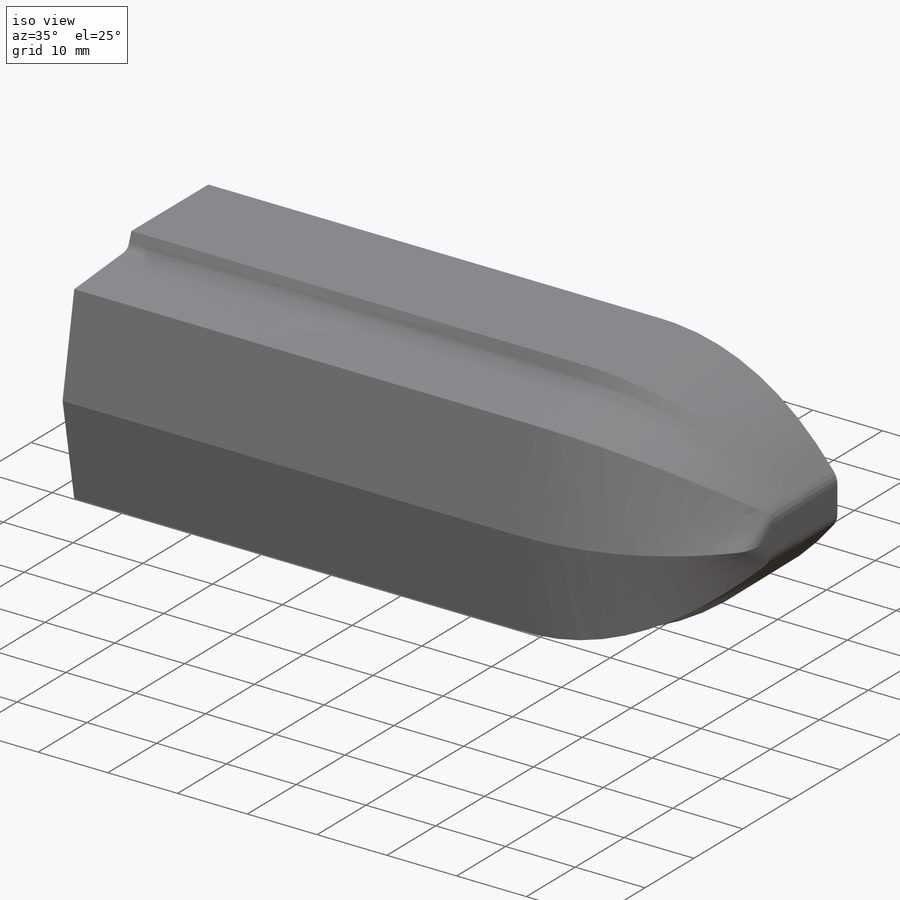
[diagram: iso view]
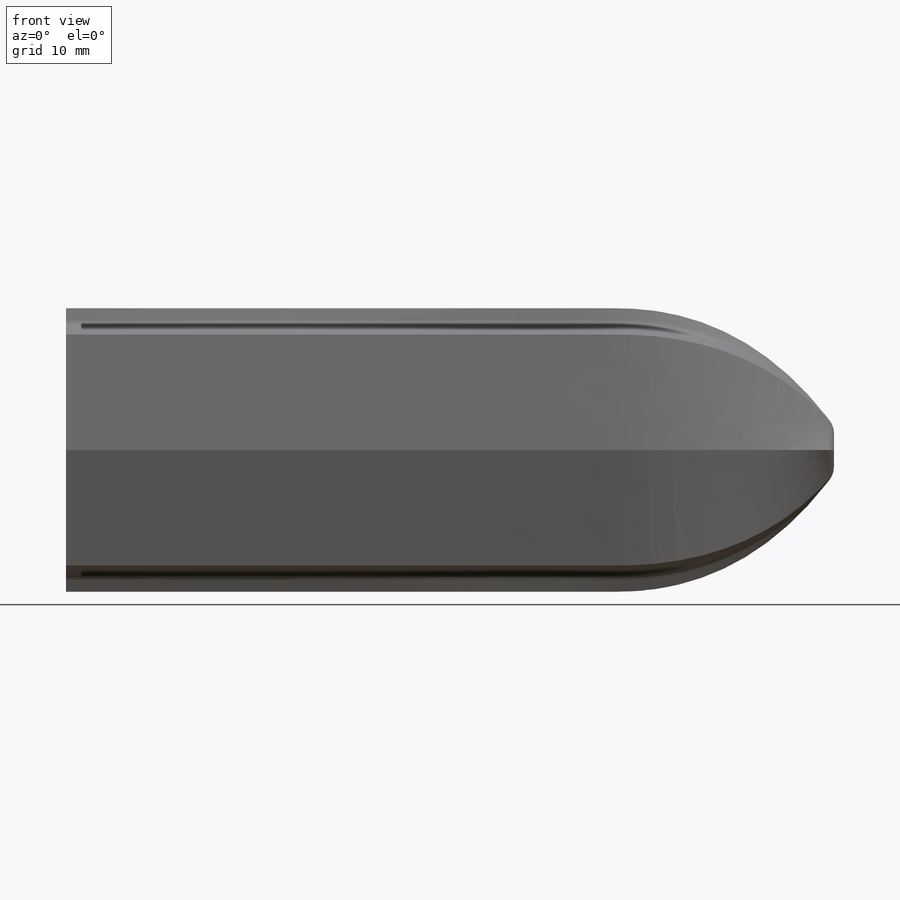
[diagram: front view]
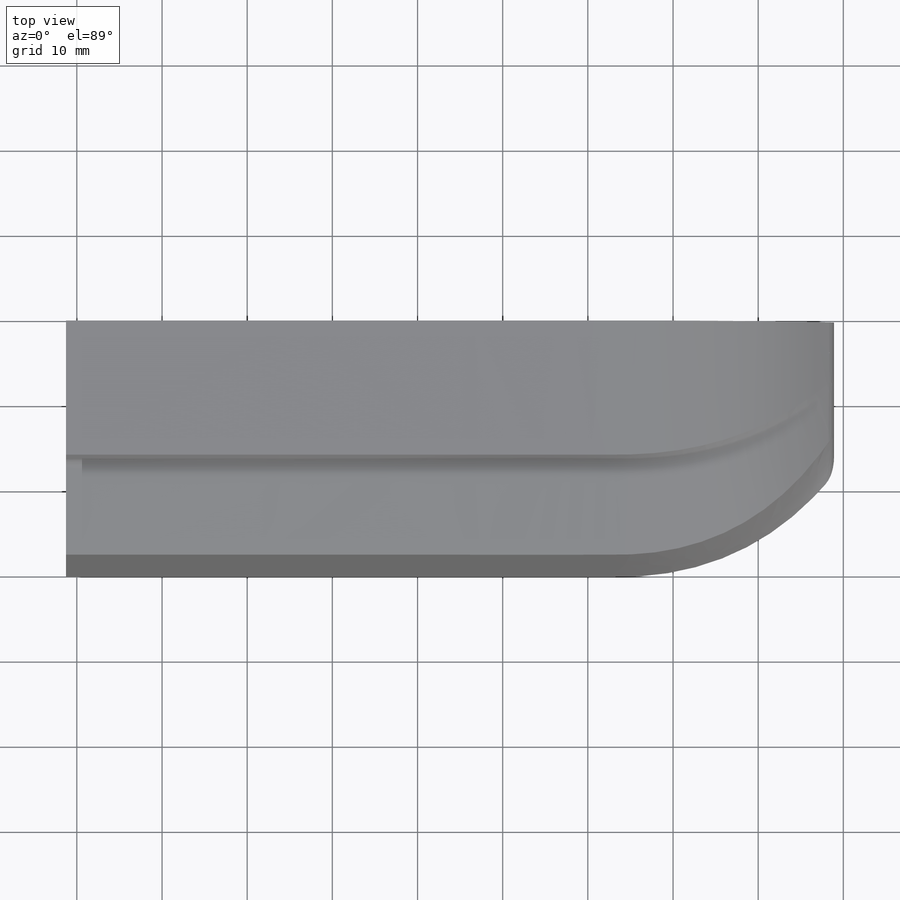
[diagram: top view]
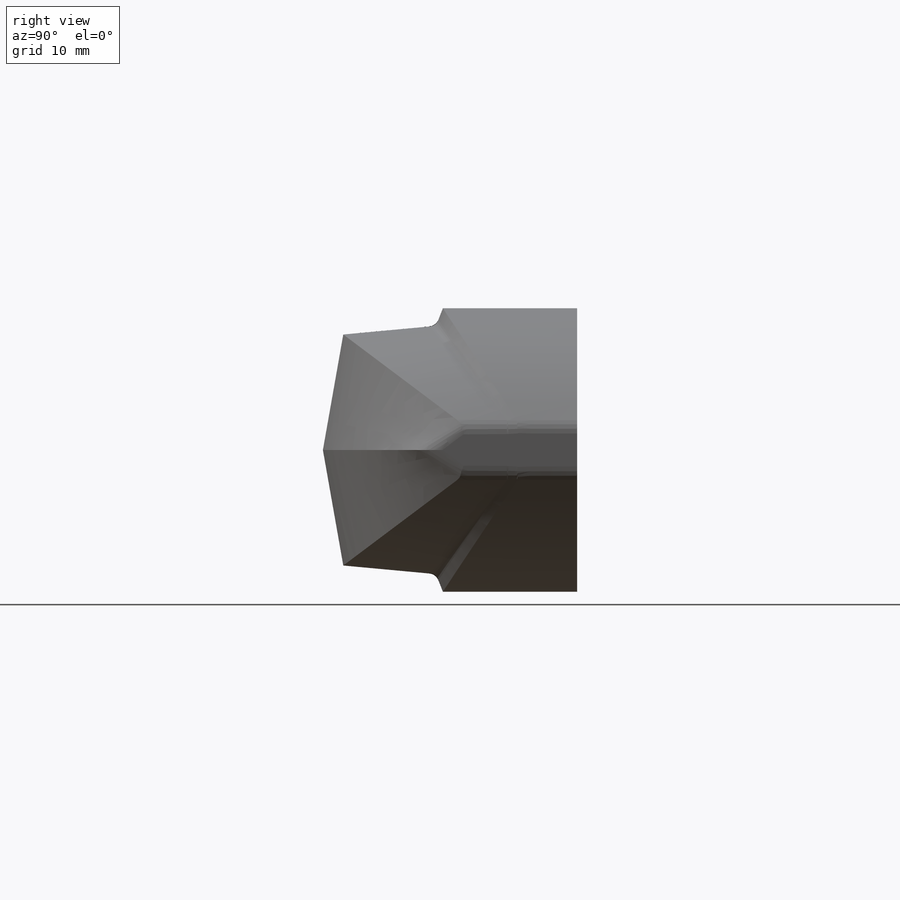
[diagram: right view]
SOLIDWORKS PART (.sldprt)
format: sldprt  version: not decoded by parser v0  size: 1,503,744 bytes
history: native  units: mm
features: sketch x29, fillet x10, extrude x8, plane x5, cut_extrude x3, mirror x3, chamfer x3, material x1 (+11 scaffold rows collapsed)
feature tree (73):
  scaffold x11  (default folders/planes/origin — collapsed)
  material  "boat_hull_SLS"
  plane  "Plane2"  Offset=63.5mm
  plane  "Plane1"  Offset=38.1mm
  plane  "Plane3"  Offset=88.9mm
  sketch  "Sketch1"  dims[c1.D4=4.445mm c1.D1=~35.069646mm c2.D1=10.0deg c2.D2=~2.813038mm c3.D2=115.0deg c3.D3=31.75mm c3.D4=~141.982194mm c3.D5=25.4mm c4.D2=25.4mm c4.D3=~14.313501mm c5.D3=110.0deg c5.D1=~25.166254mm c6.D1=80.0deg c6.D2=1.27mm c6.D3=1.27mm c6.D4=1.27mm c6.D5=1.27mm c6.D6=13.97mm c6.D7=20.32mm c6.D8=~6.552874mm c7.D8=100.0deg c7.D9=17.78mm c7.D10=7.62mm c7.D11=15.0deg c7.D12=80.0deg c8.D12=15.367mm c8.D8=~4.107132mm c9.D8=20.0deg c9.D2=~7.920647mm c10.D2=85.0deg c10.D3=2.54mm c10.D4=~22.080722mm c11.D4=20.0deg c11.D8=9.525mm c11.D3=~1.22365mm c12.D3=20.0deg c13.D3=~3.577713mm c14.D3=20.0deg c14.D4=10.922mm c14.D6=24.765mm c14.D9=15.367mm c14.D5=1.27mm]
  sketch  "Sketch7"  dims[D1=0.0mm]
  sketch  "Sketch8"  dims[D1=0.0mm]
  sketch  "Sketch6"  dims[c1.D1=~1.43544mm c2.D1=90.0deg c3.D1=2.54mm c3.D2=2.54mm c3.D3=~4.628941mm c4.D3=62.0deg c4.D4=5.588mm c4.D5=9.525mm c4.D6=3.302mm c4.D1=1.27mm]
  sketch  "3DSketch10"
  sketch  "3DSketch11"
  sketch  "3DSketch12"
  sketch  "3DSketch13"
  sketch  "3DSketch14"
  sketch  "3DSketch15"
  sketch  "3DSketch16"
  sketch  "3DSketch17"
  sketch  "3DSketch19"
  sketch  "3DSketch20"
  sketch  "3DSketch21"
  sketch  "3DSketch22"
  sketch  "3DSketch23"
  sketch  "3DSketch24"
  plane  "Plane5"
  sketch  "Sketch9"
  extrude  "Boss-Extrude1"  Depth=1.27mm
  sketch  "Sketch10"
  extrude  "Boss-Extrude2"  Depth=1.27mm
  sketch  "Sketch11"
  extrude  "Boss-Extrude3"  Depth=82.55mm
  sketch  "Sketch12"  dims[D3=6.35mm D1=12.954mm D2=16.51mm]
  cut_extrude  "Cut-Extrude1"  Depth=95.25mm
  plane  "Plane4"  Offset=25.0825mm
  sketch  "Sketch13"  dims[D1=8.255mm D2=2.921mm D3=7.112mm]
  extrude  "Boss-Extrude4"  Depth=6.35mm
  mirror  "Mirror1"
  sketch  "Sketch14"  dims[D2=3.556mm D1=16.51mm D3=13.97mm]
  cut_extrude  "Cut-Extrude2"  Depth=0.508mm
  chamfer  "Chamfer1"  Distance=4.445mm Angle=60deg
  fillet  "Fillet2"  Radius=0.635mm
  fillet  "Fillet4"  Radius=10.16mm
  fillet  "Fillet6"  Radius=1.27mm
  fillet  "Fillet8"  Radius=2.54mm
  fillet  "Fillet12"  Radius=0.635mm
  fillet  "Fillet13"  Radius=2.54mm
  sketch  "Sketch15"  dims[D1=6.35mm]
  extrude  "Boss-Extrude5"  Depth=5.08mm
  mirror  "Mirror2"
  fillet  "Fillet14"  Radius=1.27mm
  fillet  "Fillet15"  Radius=0.381mm
  sketch  "Sketch16"  dims[D3=0.762mm D4=7.62mm D5=0.762mm D1=0.254mm D2=0.254mm]
  extrude  "Boss-Extrude6"  Depth=2.54mm
  fillet  "Fillet19"  Radius=0.254mm
  sketch  "Sketch17"  dims[D1=1.778mm D2=2.54mm]
  extrude  "Boss-Extrude7"  Depth=2.54mm
  sketch  "Sketch18"  dims[D2=25.4mm D1=0.0mm]
  cut_extrude  "Cut-Extrude3"  [1 undecoded]
  chamfer  "Chamfer3"  Distance=2.54mm Angle=30deg
  sketch  "Sketch20"  dims[D1=1.778mm D2=2.54mm D3=1.905mm D4=0.254mm]
  extrude  "Boss-Extrude8"  Depth=6.35mm
  chamfer  "Chamfer5"  Distance=2.032mm Angle=45deg
  mirror  "Mirror4"
  fillet  "Fillet20"  Radius=0.381mm
decode coverage: 35 of 56 modeling features carry decoded parameters
note: ~ marks probable driven/reference dimensions
note: 1 parameter value undecoded
note: suppression state not decoded; provenance and decode notes live in map.json
